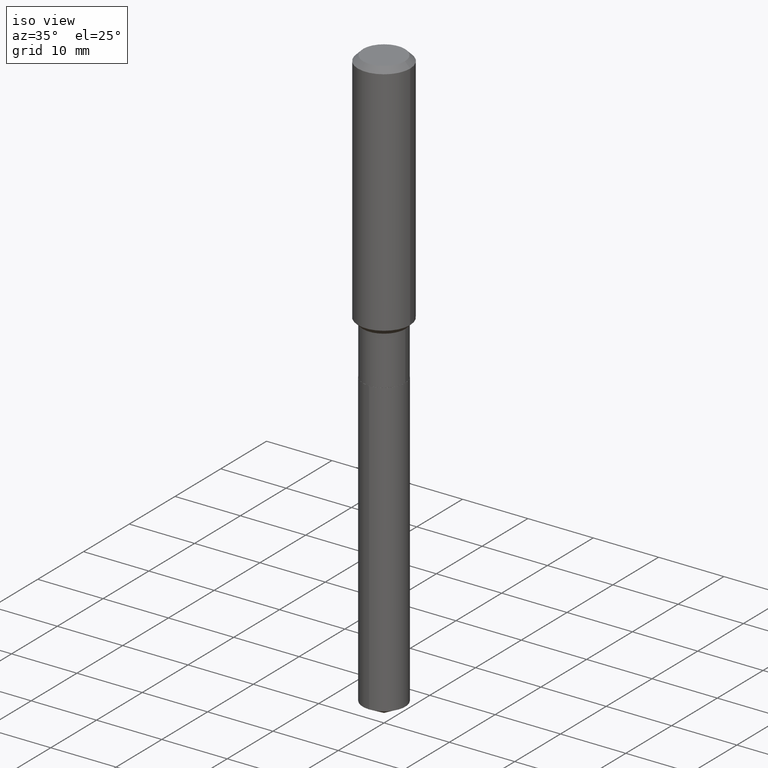
[diagram: clean part render]
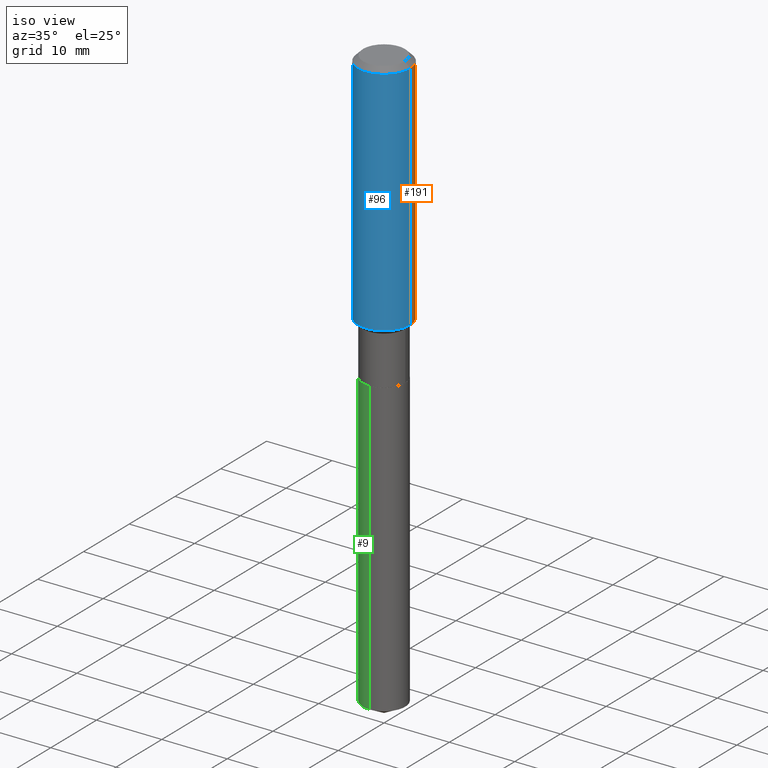
[diagram: same view with three faces highlighted in distinct colors, each labeled with its STEP entity id]
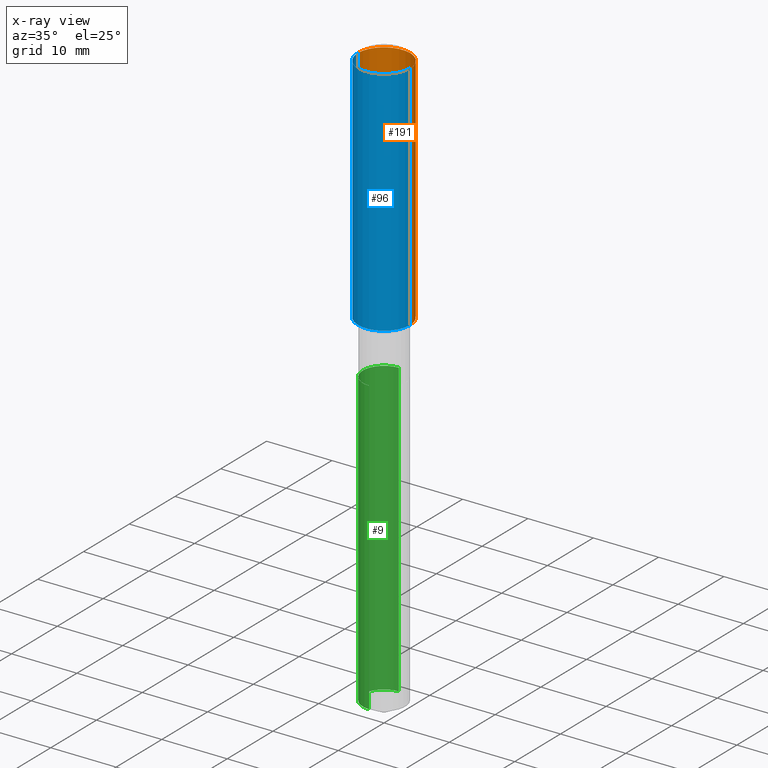
[diagram: x-ray of the same camera — body ghosted, the three highlighted faces saturated]
A machine part, iso view with three faces highlighted in distinct colors.
The next image is the same camera in x-ray (body ghosted, the three faces saturated) — at least one of them is partly hidden behind the body in this view.
Their STEP definitions:

[orange] entity #191 — the highlighted cylindrical surface (edge-blend (fillet) strip) has radius 4.0005 mm, axis along (-0, 0, 1).
#20 = CARTESIAN_POINT ( 'NONE',  ( -0.1575000000000000011, -1.429065559299040858E-15, -0.03150000000000019451 ) ) ;
#60 = DIRECTION ( 'NONE',  ( -2.445468806185136877E-29, 3.491481338843145188E-15, 1.000000000000000000 ) ) ;
#61 = EDGE_CURVE ( 'NONE', #289, #113, #197, .T. ) ;
#71 = DIRECTION ( 'NONE',  ( 1.000000000000000000, -6.982962677686267499E-15, 0.000000000000000000 ) ) ;
#79 = CIRCLE ( 'NONE', #117, 0.1575000000000001676 ) ;
#101 = CARTESIAN_POINT ( 'NONE',  ( 0.1575000000000000844, -1.099816621735587677E-15, 7.679978421878603638E-30 ) ) ;
#113 = VERTEX_POINT ( 'NONE', #20 ) ;
#117 = AXIS2_PLACEMENT_3D ( 'NONE', #332, #370, #71 ) ;
#136 = CYLINDRICAL_SURFACE ( 'NONE', #233, 0.1575000000000000844 ) ;
#144 = ORIENTED_EDGE ( 'NONE', *, *, #263, .F. ) ;
#150 = ORIENTED_EDGE ( 'NONE', *, *, #61, .T. ) ;
#175 = DIRECTION ( 'NONE',  ( 1.000000000000000000, -6.982962677686265922E-15, 0.000000000000000000 ) ) ;
#191 = ADVANCED_FACE ( 'NONE', ( #366 ), #136, .T. ) ;
#197 = LINE ( 'NONE', #229, #301 ) ;
#208 = CARTESIAN_POINT ( 'NONE',  ( 0.1575000000000000011, -1.209798283909146741E-15, -0.03150000000000019451 ) ) ;
#219 = EDGE_LOOP ( 'NONE', ( #291, #150, #420, #144 ) ) ;
#229 = CARTESIAN_POINT ( 'NONE',  ( -0.1575000000000000844, 1.119104808822158392E-15, -7.747322767151481189E-30 ) ) ;
#233 = AXIS2_PLACEMENT_3D ( 'NONE', #441, #405, #278 ) ;
#263 = EDGE_CURVE ( 'NONE', #460, #300, #435, .T. ) ;
#278 = DIRECTION ( 'NONE',  ( 1.000000000000000000, -6.982962677686267499E-15, 4.876176775795936353E-29 ) ) ;
#289 = VERTEX_POINT ( 'NONE', #474 ) ;
#291 = ORIENTED_EDGE ( 'NONE', *, *, #362, .T. ) ;
#292 = CARTESIAN_POINT ( 'NONE',  ( 7.703226739483228723E-31, -1.099816621735597661E-16, -0.03150000000000019451 ) ) ;
#300 = VERTEX_POINT ( 'NONE', #208 ) ;
#301 = VECTOR ( 'NONE', #388, 39.37007874015748143 ) ;
#311 = CIRCLE ( 'NONE', #373, 0.1575000000000000011 ) ;
#332 = CARTESIAN_POINT ( 'NONE',  ( 3.492496275553303291E-29, -4.986359074068839042E-15, -1.428150000000000253 ) ) ;
#362 = EDGE_CURVE ( 'NONE', #460, #289, #79, .T. ) ;
#366 = FACE_OUTER_BOUND ( 'NONE', #219, .T. ) ;
#370 = DIRECTION ( 'NONE',  ( -2.445468806185136597E-29, 3.491481338843145583E-15, 1.000000000000000000 ) ) ;
#373 = AXIS2_PLACEMENT_3D ( 'NONE', #292, #375, #175 ) ;
#375 = DIRECTION ( 'NONE',  ( -2.445468806185136597E-29, 3.491481338843145583E-15, 1.000000000000000000 ) ) ;
#379 = CARTESIAN_POINT ( 'NONE',  ( 0.1575000000000001676, -6.086175695804426522E-15, -1.428150000000000253 ) ) ;
#388 = DIRECTION ( 'NONE',  ( -2.445468806185136877E-29, 3.491481338843145188E-15, 1.000000000000000000 ) ) ;
#395 = EDGE_CURVE ( 'NONE', #300, #113, #311, .T. ) ;
#399 = VECTOR ( 'NONE', #60, 39.37007874015748143 ) ;
#405 = DIRECTION ( 'NONE',  ( -2.445468806185136597E-29, 3.491481338843145583E-15, 1.000000000000000000 ) ) ;
#420 = ORIENTED_EDGE ( 'NONE', *, *, #395, .F. ) ;
#435 = LINE ( 'NONE', #101, #399 ) ;
#441 = CARTESIAN_POINT ( 'NONE',  ( 0.000000000000000000, 0.000000000000000000, 0.000000000000000000 ) ) ;
#460 = VERTEX_POINT ( 'NONE', #379 ) ;
#474 = CARTESIAN_POINT ( 'NONE',  ( -0.1575000000000001676, -3.867254265246679861E-15, -1.428150000000000253 ) ) ;

[blue] entity #96 — the highlighted cylindrical surface (edge-blend (fillet) strip) has radius 4.0005 mm, axis along (-0, 0, 1).
#7 = ORIENTED_EDGE ( 'NONE', *, *, #29, .F. ) ;
#12 = AXIS2_PLACEMENT_3D ( 'NONE', #47, #306, #54 ) ;
#15 = DIRECTION ( 'NONE',  ( 1.000000000000000000, -6.982962677686265922E-15, 0.000000000000000000 ) ) ;
#20 = CARTESIAN_POINT ( 'NONE',  ( -0.1575000000000000011, -1.429065559299040858E-15, -0.03150000000000019451 ) ) ;
#29 = EDGE_CURVE ( 'NONE', #113, #300, #220, .T. ) ;
#41 = EDGE_CURVE ( 'NONE', #289, #460, #206, .T. ) ;
#45 = ORIENTED_EDGE ( 'NONE', *, *, #263, .T. ) ;
#47 = CARTESIAN_POINT ( 'NONE',  ( 3.492496275553303291E-29, -4.986359074068839042E-15, -1.428150000000000253 ) ) ;
#54 = DIRECTION ( 'NONE',  ( 1.000000000000000000, -6.982962677686267499E-15, 0.000000000000000000 ) ) ;
#60 = DIRECTION ( 'NONE',  ( -2.445468806185136877E-29, 3.491481338843145188E-15, 1.000000000000000000 ) ) ;
#61 = EDGE_CURVE ( 'NONE', #289, #113, #197, .T. ) ;
#96 = ADVANCED_FACE ( 'NONE', ( #470 ), #122, .T. ) ;
#101 = CARTESIAN_POINT ( 'NONE',  ( 0.1575000000000000844, -1.099816621735587677E-15, 7.679978421878603638E-30 ) ) ;
#113 = VERTEX_POINT ( 'NONE', #20 ) ;
#122 = CYLINDRICAL_SURFACE ( 'NONE', #476, 0.1575000000000000844 ) ;
#197 = LINE ( 'NONE', #229, #301 ) ;
#206 = CIRCLE ( 'NONE', #12, 0.1575000000000001676 ) ;
#208 = CARTESIAN_POINT ( 'NONE',  ( 0.1575000000000000011, -1.209798283909146741E-15, -0.03150000000000019451 ) ) ;
#220 = CIRCLE ( 'NONE', #262, 0.1575000000000000011 ) ;
#226 = DIRECTION ( 'NONE',  ( -2.445468806185136597E-29, 3.491481338843145583E-15, 1.000000000000000000 ) ) ;
#229 = CARTESIAN_POINT ( 'NONE',  ( -0.1575000000000000844, 1.119104808822158392E-15, -7.747322767151481189E-30 ) ) ;
#262 = AXIS2_PLACEMENT_3D ( 'NONE', #427, #226, #15 ) ;
#263 = EDGE_CURVE ( 'NONE', #460, #300, #435, .T. ) ;
#272 = DIRECTION ( 'NONE',  ( -2.445468806185136597E-29, 3.491481338843145583E-15, 1.000000000000000000 ) ) ;
#289 = VERTEX_POINT ( 'NONE', #474 ) ;
#300 = VERTEX_POINT ( 'NONE', #208 ) ;
#301 = VECTOR ( 'NONE', #388, 39.37007874015748143 ) ;
#306 = DIRECTION ( 'NONE',  ( -2.445468806185136597E-29, 3.491481338843145583E-15, 1.000000000000000000 ) ) ;
#325 = ORIENTED_EDGE ( 'NONE', *, *, #61, .F. ) ;
#379 = CARTESIAN_POINT ( 'NONE',  ( 0.1575000000000001676, -6.086175695804426522E-15, -1.428150000000000253 ) ) ;
#388 = DIRECTION ( 'NONE',  ( -2.445468806185136877E-29, 3.491481338843145188E-15, 1.000000000000000000 ) ) ;
#393 = CARTESIAN_POINT ( 'NONE',  ( 0.000000000000000000, 0.000000000000000000, 0.000000000000000000 ) ) ;
#399 = VECTOR ( 'NONE', #60, 39.37007874015748143 ) ;
#410 = ORIENTED_EDGE ( 'NONE', *, *, #41, .T. ) ;
#427 = CARTESIAN_POINT ( 'NONE',  ( 7.703226739483228723E-31, -1.099816621735597661E-16, -0.03150000000000019451 ) ) ;
#435 = LINE ( 'NONE', #101, #399 ) ;
#452 = EDGE_LOOP ( 'NONE', ( #325, #410, #45, #7 ) ) ;
#460 = VERTEX_POINT ( 'NONE', #379 ) ;
#470 = FACE_OUTER_BOUND ( 'NONE', #452, .T. ) ;
#472 = DIRECTION ( 'NONE',  ( 1.000000000000000000, -6.982962677686267499E-15, 4.876176775795936353E-29 ) ) ;
#474 = CARTESIAN_POINT ( 'NONE',  ( -0.1575000000000001676, -3.867254265246679861E-15, -1.428150000000000253 ) ) ;
#476 = AXIS2_PLACEMENT_3D ( 'NONE', #393, #272, #472 ) ;

[green] entity #9 — the highlighted cylindrical surface (edge-blend (fillet) strip) has radius 3.2499 mm, axis along (-0, 0, 1).
#3 = DIRECTION ( 'NONE',  ( -2.445453981402094289E-29, 3.491502568776236495E-15, 1.000000000000000000 ) ) ;
#6 = DIRECTION ( 'NONE',  ( -6.982962677686266711E-15, -1.000000000000000000, 4.270180529369696392E-15 ) ) ;
#9 = ADVANCED_FACE ( 'NONE', ( #390 ), #467, .T. ) ;
#52 = CIRCLE ( 'NONE', #209, 0.1279500000000000082 ) ;
#57 = DIRECTION ( 'NONE',  ( -2.445453981402094289E-29, 3.491502568776236889E-15, 1.000000000000000000 ) ) ;
#107 = ORIENTED_EDGE ( 'NONE', *, *, #313, .F. ) ;
#133 = CIRCLE ( 'NONE', #148, 0.1279500000000000082 ) ;
#138 = CARTESIAN_POINT ( 'NONE',  ( 8.594984284570985817E-29, -1.227143438120363125E-14, -3.514667778218913963 ) ) ;
#147 = VERTEX_POINT ( 'NONE', #342 ) ;
#148 = AXIS2_PLACEMENT_3D ( 'NONE', #138, #330, #419 ) ;
#157 = DIRECTION ( 'NONE',  ( -6.982962677686266711E-15, -1.000000000000000000, 4.270180529369696392E-15 ) ) ;
#167 = LINE ( 'NONE', #281, #297 ) ;
#172 = CARTESIAN_POINT ( 'NONE',  ( 9.091394304050910416E-16, 0.1279499999999939019, -1.752000000000000890 ) ) ;
#187 = ORIENTED_EDGE ( 'NONE', *, *, #353, .F. ) ;
#200 = DIRECTION ( 'NONE',  ( -2.445453981402094289E-29, 3.491502568776236495E-15, 1.000000000000000000 ) ) ;
#209 = AXIS2_PLACEMENT_3D ( 'NONE', #454, #3, #6 ) ;
#217 = EDGE_LOOP ( 'NONE', ( #107, #423, #401, #187 ) ) ;
#232 = EDGE_CURVE ( 'NONE', #329, #259, #167, .T. ) ;
#255 = CARTESIAN_POINT ( 'NONE',  ( 9.091394304051342317E-16, 0.1279499999999877680, -3.514667778218914851 ) ) ;
#259 = VERTEX_POINT ( 'NONE', #361 ) ;
#281 = CARTESIAN_POINT ( 'NONE',  ( -8.934700746099150741E-16, -0.1279500000000061144, -1.751999999999999780 ) ) ;
#297 = VECTOR ( 'NONE', #57, 39.37007874015748143 ) ;
#313 = EDGE_CURVE ( 'NONE', #322, #147, #481, .T. ) ;
#322 = VERTEX_POINT ( 'NONE', #255 ) ;
#329 = VERTEX_POINT ( 'NONE', #372 ) ;
#330 = DIRECTION ( 'NONE',  ( -2.445453981402094289E-29, 3.491502568776236495E-15, 1.000000000000000000 ) ) ;
#342 = CARTESIAN_POINT ( 'NONE',  ( 9.091394304051344289E-16, 0.1279499999999939019, -1.752000000000000890 ) ) ;
#353 = EDGE_CURVE ( 'NONE', #147, #259, #52, .T. ) ;
#361 = CARTESIAN_POINT ( 'NONE',  ( -8.934700746099150741E-16, -0.1279500000000061144, -1.751999999999999780 ) ) ;
#363 = AXIS2_PLACEMENT_3D ( 'NONE', #431, #200, #157 ) ;
#372 = CARTESIAN_POINT ( 'NONE',  ( -8.934700746098720812E-16, -0.1279500000000123039, -3.514667778218913519 ) ) ;
#390 = FACE_OUTER_BOUND ( 'NONE', #217, .T. ) ;
#401 = ORIENTED_EDGE ( 'NONE', *, *, #232, .T. ) ;
#419 = DIRECTION ( 'NONE',  ( -6.982962677686266711E-15, -1.000000000000000000, 4.270180529369696392E-15 ) ) ;
#423 = ORIENTED_EDGE ( 'NONE', *, *, #453, .T. ) ;
#431 = CARTESIAN_POINT ( 'NONE',  ( 4.284461348436360250E-29, -6.117075305653192263E-15, -1.752000000000000224 ) ) ;
#439 = VECTOR ( 'NONE', #483, 39.37007874015748143 ) ;
#453 = EDGE_CURVE ( 'NONE', #322, #329, #133, .T. ) ;
#454 = CARTESIAN_POINT ( 'NONE',  ( 4.284461348436360250E-29, -6.117075305653192263E-15, -1.752000000000000224 ) ) ;
#467 = CYLINDRICAL_SURFACE ( 'NONE', #363, 0.1279500000000000082 ) ;
#481 = LINE ( 'NONE', #172, #439 ) ;
#483 = DIRECTION ( 'NONE',  ( -2.445453981402094289E-29, 3.491502568776236889E-15, 1.000000000000000000 ) ) ;